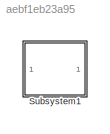
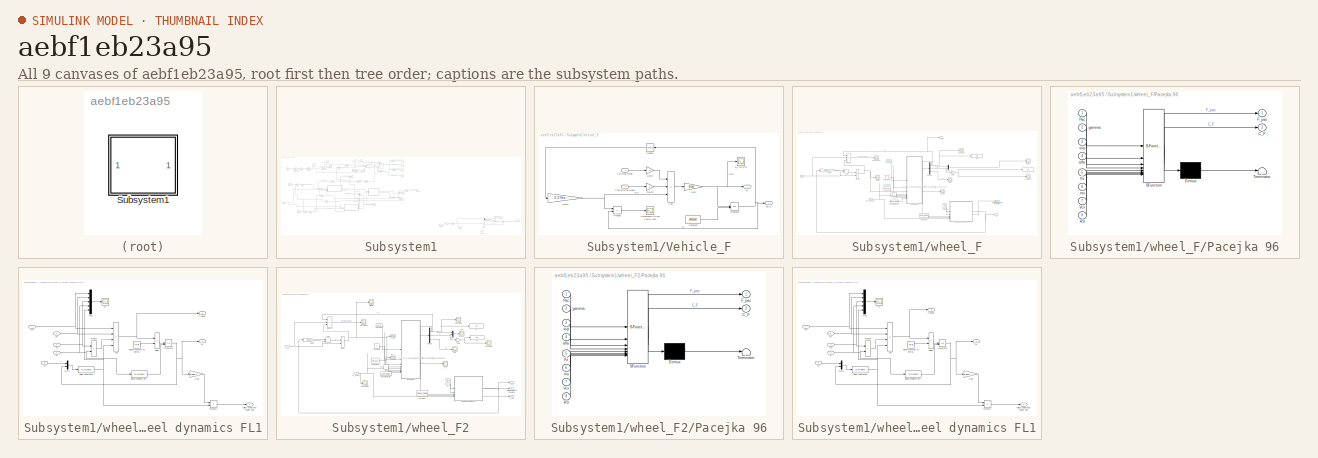
[diagram: thumbnail index - all 9 canvases of the model, root first then tree order]
MODEL slx_aebf1eb23a95
KIND model
CONFIG AbsTol = auto
CONFIG EnableMultiTasking = off
CONFIG FixedStep = 0.001
CONFIG MaxStep = auto
CONFIG MinStep = auto
CONFIG RelTol = 1e-3
CONFIG SampleTimeConstraint = Unconstrained
CONFIG SolverName = ode4
CONFIG StartTime = 0.0
CONFIG StopTime = 200
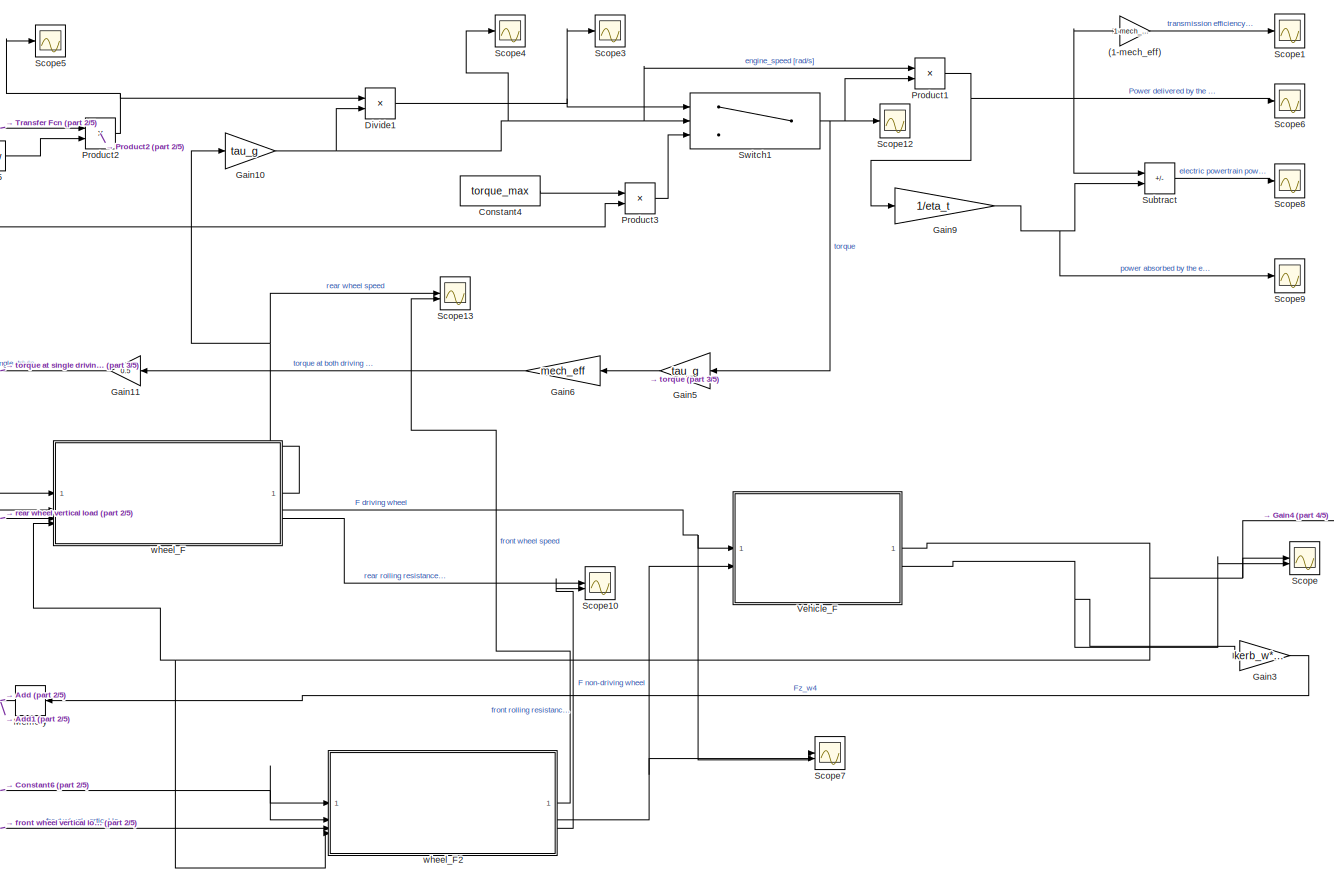
[diagram: Subsystem1 - part 1/5, central region]
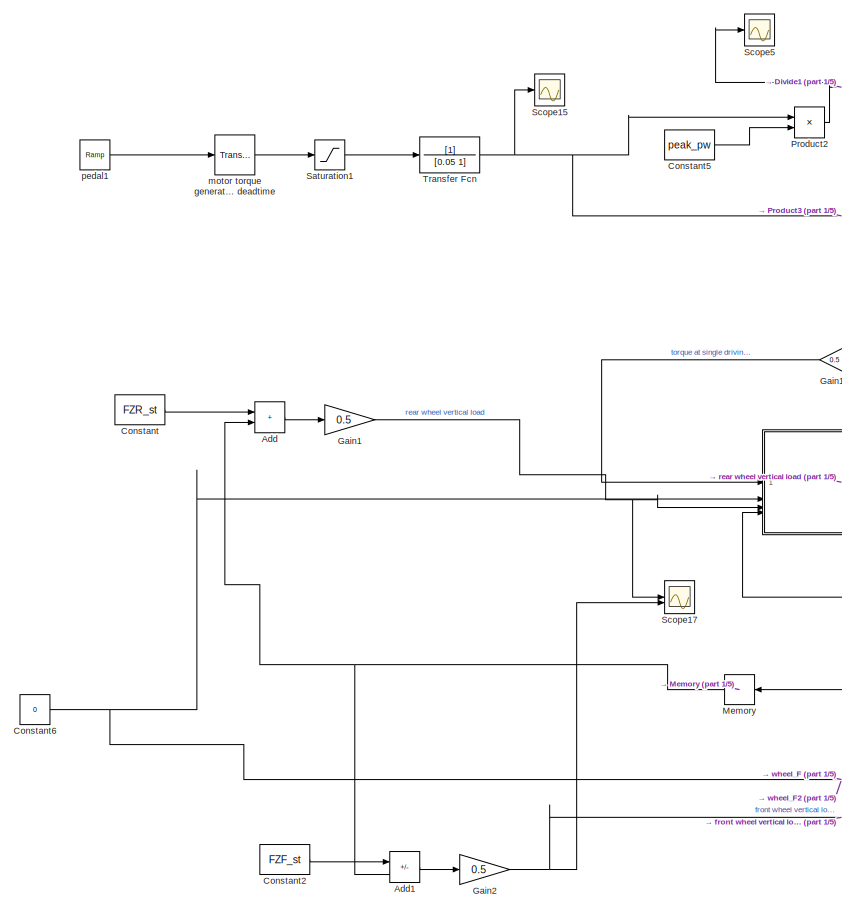
[diagram: Subsystem1 - part 2/5, middle left region]
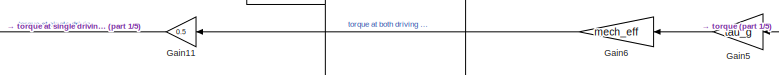
[diagram: Subsystem1 - part 3/5, top left region]
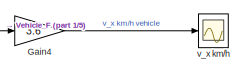
[diagram: Subsystem1 - part 4/5, central region]
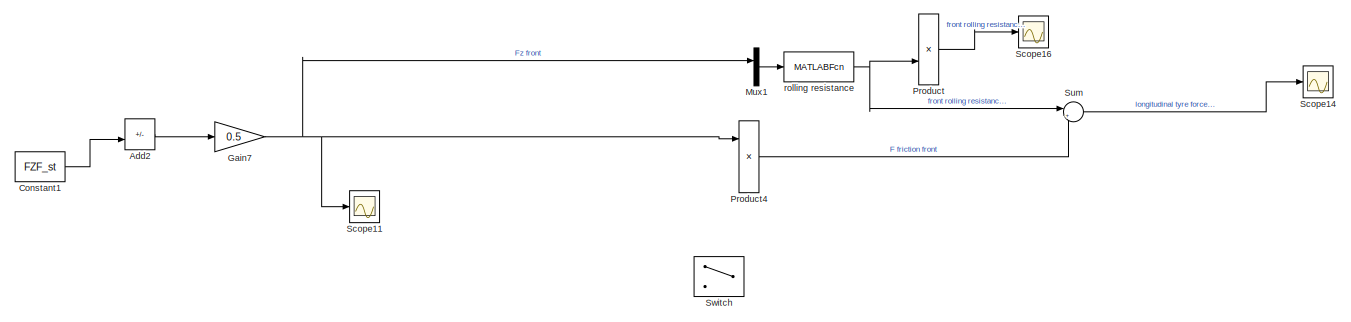
[diagram: Subsystem1 - part 5/5, bottom right region]
BLOCK [SubSystem] Subsystem1
BLOCK [TransportDelay] Subsystem1/ motor torque generation deadtime
  DelayTime = 0.02
BLOCK [Gain] Subsystem1/(1-mech_eff)
  Gain = 1-mech_eff
BLOCK [Sum] Subsystem1/Add
  IconShape = rectangular
BLOCK [Sum] Subsystem1/Add1
  IconShape = rectangular
  Inputs = +-
BLOCK [Sum] Subsystem1/Add2
  Commented = on
  IconShape = rectangular
  Inputs = -+
BLOCK [Constant] Subsystem1/Constant
  Value = FZR_st
BLOCK [Constant] Subsystem1/Constant1
  Commented = on
  Value = FZF_st
BLOCK [Constant] Subsystem1/Constant2
  Value = FZF_st
BLOCK [Constant] Subsystem1/Constant4
  Value = torque_max
  VectorParams1D = off
BLOCK [Constant] Subsystem1/Constant5
  Value = peak_pw
  VectorParams1D = off
BLOCK [Constant] Subsystem1/Constant6
  Value = 0
BLOCK [Product] Subsystem1/Divide1
  Inputs = */
BLOCK [Gain] Subsystem1/Gain1
  Gain = 0.5
BLOCK [Gain] Subsystem1/Gain10
  Gain = tau_g
BLOCK [Gain] Subsystem1/Gain11
  Gain = 0.5
BLOCK [Gain] Subsystem1/Gain2
  Gain = 0.5
BLOCK [Gain] Subsystem1/Gain3
  Gain = kerb_w*cog/wheelbase
BLOCK [Gain] Subsystem1/Gain4
  Gain = 3.6
BLOCK [Gain] Subsystem1/Gain5
  Gain = tau_g
BLOCK [Gain] Subsystem1/Gain6
  Gain = mech_eff
BLOCK [Gain] Subsystem1/Gain7
  Commented = on
  Gain = 0.5
BLOCK [Gain] Subsystem1/Gain9
  Gain = 1/eta_t
BLOCK [Memory] Subsystem1/Memory
BLOCK [Mux] Subsystem1/Mux1
  Commented = on
  DisplayOption = bar
  Inputs = 2
BLOCK [Product] Subsystem1/Product
  Commented = on
BLOCK [Product] Subsystem1/Product1
BLOCK [Product] Subsystem1/Product2
BLOCK [Product] Subsystem1/Product3
BLOCK [Product] Subsystem1/Product4
  Commented = on
  Inputs = 3
BLOCK [Saturate] Subsystem1/Saturation1
  LowerLimit = 0
  UpperLimit = 1
BLOCK [Scope] Subsystem1/Scope
  Floating = off
  NumInputPorts = 2
  ScopeSpecificationString = Simulink.scopes.TimeScopeBlockCfg('CurrentConfiguration', extmgr.ConfigurationSet(extmgr.Configuration('Core','General UI',true),extmgr.Configuration('Core','Source UI',true),extmgr.Configuration('Sources','WiredSimulink',true,'DataLoggingVariableName','ScopeData2'),extmgr.Configuration('Visuals','Time Domain',true,'SerializedDisplays',{struct('MinYLimReal','-13.62778','MaxYLimReal','48.47157','YL...<+1425ch>
BLOCK [Scope] Subsystem1/Scope1
  Floating = off
  NameLocation = top
  NumInputPorts = 1
  ScopeSpecificationString = Simulink.scopes.TimeScopeBlockCfg('CurrentConfiguration', extmgr.ConfigurationSet(extmgr.Configuration('Core','General UI',true),extmgr.Configuration('Core','Source UI',true),extmgr.Configuration('Sources','WiredSimulink',true,'DataLoggingVariableName','ScopeData1'),extmgr.Configuration('Visuals','Time Domain',true,'SerializedDisplays',{struct('MinYLimReal','-362.98885','MaxYLimReal','8003.65139',...<+1461ch>
BLOCK [Scope] Subsystem1/Scope10
  Floating = off
  NumInputPorts = 2
  ScopeSpecificationString = Simulink.scopes.TimeScopeBlockCfg('CurrentConfiguration', extmgr.ConfigurationSet(extmgr.Configuration('Core','General UI',true),extmgr.Configuration('Core','Source UI',true),extmgr.Configuration('Sources','WiredSimulink',true,'DataLoggingVariableName','ScopeData1'),extmgr.Configuration('Visuals','Time Domain',true,'SerializedDisplays',{struct('MinYLimReal','-2482.70812','MaxYLimReal','22278.00893...<+1488ch>
BLOCK [Scope] Subsystem1/Scope11
  Commented = on
  Floating = off
  NumInputPorts = 1
  ScopeSpecificationString = Simulink.scopes.TimeScopeBlockCfg('CurrentConfiguration', extmgr.ConfigurationSet(extmgr.Configuration('Core','General UI',true),extmgr.Configuration('Core','Source UI',true),extmgr.Configuration('Sources','WiredSimulink',true,'DataLoggingVariableName','ScopeData2'),extmgr.Configuration('Visuals','Time Domain',true,'SerializedDisplays',{struct('MinYLimReal','3099.41503','MaxYLimReal','5765.86481',...<+1389ch>
BLOCK [Scope] Subsystem1/Scope12
  Floating = off
  NameLocation = top
  NumInputPorts = 1
  ScopeSpecificationString = Simulink.scopes.TimeScopeBlockCfg('CurrentConfiguration', extmgr.ConfigurationSet(extmgr.Configuration('Core','General UI',true),extmgr.Configuration('Core','Source UI',true),extmgr.Configuration('Sources','WiredSimulink',true,'DataLoggingVariableName','ScopeData1'),extmgr.Configuration('Visuals','Time Domain',true,'SerializedDisplays',{struct('MinYLimReal','-32.04625','MaxYLimReal','288.41625','Y...<+1427ch>
BLOCK [Scope] Subsystem1/Scope13
  Floating = off
  NumInputPorts = 2
  ScopeSpecificationString = Simulink.scopes.TimeScopeBlockCfg('CurrentConfiguration', extmgr.ConfigurationSet(extmgr.Configuration('Core','General UI',true),extmgr.Configuration('Core','Source UI',true),extmgr.Configuration('Sources','WiredSimulink',true,'DataLoggingVariableName','ScopeData2'),extmgr.Configuration('Visuals','Time Domain',true,'SerializedDisplays',{struct('MinYLimReal','-15.69215','MaxYLimReal','136.82999','Y...<+1405ch>
BLOCK [Scope] Subsystem1/Scope14
  Commented = on
  Floating = off
  NumInputPorts = 1
  ScopeSpecificationString = Simulink.scopes.TimeScopeBlockCfg('CurrentConfiguration', extmgr.ConfigurationSet(extmgr.Configuration('Core','General UI',true),extmgr.Configuration('Core','Source UI',true),extmgr.Configuration('Sources','WiredSimulink',true,'DataLoggingVariableName','ScopeData3'),extmgr.Configuration('Visuals','Time Domain',true,'SerializedDisplays',{struct('MinYLimReal','56.69739','MaxYLimReal','141.60777','YL...<+1398ch>
BLOCK [Scope] Subsystem1/Scope15
  Floating = off
  NumInputPorts = 1
  ScopeSpecificationString = Simulink.scopes.TimeScopeBlockCfg('CurrentConfiguration', extmgr.ConfigurationSet(extmgr.Configuration('Core','General UI',true),extmgr.Configuration('Core','Source UI',true),extmgr.Configuration('Sources','WiredSimulink',true),extmgr.Configuration('Visuals','Time Domain',true,'SerializedDisplays',{struct('MinYLimReal','-0.125','MaxYLimReal','1.125','YLabelReal','','MinYLimMag','0.00000','MaxYLimM...<+1320ch>
BLOCK [Scope] Subsystem1/Scope16
  Commented = on
  Floating = off
  NumInputPorts = 1
  ScopeSpecificationString = Simulink.scopes.TimeScopeBlockCfg('CurrentConfiguration', extmgr.ConfigurationSet(extmgr.Configuration('Core','General UI',true),extmgr.Configuration('Core','Source UI',true),extmgr.Configuration('Sources','WiredSimulink',true,'DataLoggingVariableName','ScopeData4'),extmgr.Configuration('Visuals','Time Domain',true,'SerializedDisplays',{struct('MinYLimReal','-451.6741','MaxYLimReal','4095.15071','...<+1410ch>
BLOCK [Scope] Subsystem1/Scope17
  Floating = off
  NumInputPorts = 2
  ScopeSpecificationString = Simulink.scopes.TimeScopeBlockCfg('CurrentConfiguration', extmgr.ConfigurationSet(extmgr.Configuration('Core','General UI',true),extmgr.Configuration('Core','Source UI',true),extmgr.Configuration('Sources','WiredSimulink',true,'DataLoggingVariableName','ScopeData5'),extmgr.Configuration('Visuals','Time Domain',true,'SerializedDisplays',{struct('MinYLimReal','2769.52655','MaxYLimReal','6118.33345',...<+1433ch>
BLOCK [Scope] Subsystem1/Scope3
  Floating = off
  NumInputPorts = 1
  ScopeSpecificationString = Simulink.scopes.TimeScopeBlockCfg('CurrentConfiguration', extmgr.ConfigurationSet(extmgr.Configuration('Core','General UI',true),extmgr.Configuration('Core','Source UI',true),extmgr.Configuration('Sources','WiredSimulink',true,'DataLoggingVariableName','ScopeData3'),extmgr.Configuration('Visuals','Time Domain',true,'SerializedDisplays',{struct('MinYLimReal','-11640.59081','MaxYLimReal','27563.9427...<+1443ch>
BLOCK [Scope] Subsystem1/Scope4
  Floating = off
  NumInputPorts = 1
  ScopeSpecificationString = Simulink.scopes.TimeScopeBlockCfg('CurrentConfiguration', extmgr.ConfigurationSet(extmgr.Configuration('Core','General UI',true),extmgr.Configuration('Core','Source UI',true),extmgr.Configuration('Sources','WiredSimulink',true,'DataLoggingVariableName','ScopeData4'),extmgr.Configuration('Visuals','Time Domain',true,'SerializedDisplays',{struct('MinYLimReal','-213.74036','MaxYLimReal','1888.85018',...<+1445ch>
BLOCK [Scope] Subsystem1/Scope5
  Floating = off
  NumInputPorts = 1
  ScopeSpecificationString = Simulink.scopes.TimeScopeBlockCfg('CurrentConfiguration', extmgr.ConfigurationSet(extmgr.Configuration('Core','General UI',true),extmgr.Configuration('Core','Source UI',true),extmgr.Configuration('Sources','WiredSimulink',true,'DataLoggingVariableName','ScopeData5'),extmgr.Configuration('Visuals','Time Domain',true,'SerializedDisplays',{struct('MinYLimReal','-1500.00000','MaxYLimReal','13500.00000...<+1393ch>
BLOCK [Scope] Subsystem1/Scope6
  Floating = off
  NameLocation = top
  NumInputPorts = 1
  ScopeSpecificationString = Simulink.scopes.TimeScopeBlockCfg('CurrentConfiguration', extmgr.ConfigurationSet(extmgr.Configuration('Core','General UI',true),extmgr.Configuration('Core','Source UI',true),extmgr.Configuration('Sources','WiredSimulink',true,'DataLoggingVariableName','ScopeData3'),extmgr.Configuration('Visuals','Time Domain',true,'SerializedDisplays',{struct('MinYLimReal','-18750.00000','MaxYLimReal','168750.000...<+1472ch>
BLOCK [Scope] Subsystem1/Scope7
  Floating = off
  NumInputPorts = 2
  ScopeSpecificationString = Simulink.scopes.TimeScopeBlockCfg('CurrentConfiguration', extmgr.ConfigurationSet(extmgr.Configuration('Core','General UI',true),extmgr.Configuration('Core','Source UI',true),extmgr.Configuration('Sources','WiredSimulink',true,'DataLoggingVariableName','ScopeData5'),extmgr.Configuration('Visuals','Time Domain',true,'SerializedDisplays',{struct('MinYLimReal','-2058.45295','MaxYLimReal','1851.55702'...<+1437ch>
BLOCK [Scope] Subsystem1/Scope8
  Floating = off
  NameLocation = top
  NumInputPorts = 1
  ScopeSpecificationString = Simulink.scopes.TimeScopeBlockCfg('CurrentConfiguration', extmgr.ConfigurationSet(extmgr.Configuration('Core','General UI',true),extmgr.Configuration('Core','Source UI',true),extmgr.Configuration('Sources','WiredSimulink',true,'DataLoggingVariableName','ScopeData4'),extmgr.Configuration('Visuals','Time Domain',true,'SerializedDisplays',{struct('MinYLimReal','-545.86001','MaxYLimReal','17060.40468'...<+1458ch>
BLOCK [Scope] Subsystem1/Scope9
  Floating = off
  NameLocation = top
  NumInputPorts = 1
  ScopeSpecificationString = Simulink.scopes.TimeScopeBlockCfg('CurrentConfiguration', extmgr.ConfigurationSet(extmgr.Configuration('Core','General UI',true),extmgr.Configuration('Core','Source UI',true),extmgr.Configuration('Sources','WiredSimulink',true,'DataLoggingVariableName','ScopeData1'),extmgr.Configuration('Visuals','Time Domain',true,'SerializedDisplays',{struct('MinYLimReal','-20833.33333','MaxYLimReal','187500.000...<+1768ch>
BLOCK [Sum] Subsystem1/Subtract
  IconShape = rectangular
  Inputs = -+
BLOCK [Sum] Subsystem1/Sum
  Commented = on
  Inputs = |++
BLOCK [Switch] Subsystem1/Switch
  Commented = on
  Criteria = u2 > Threshold
  InputSameDT = off
  SaturateOnIntegerOverflow = off
BLOCK [Switch] Subsystem1/Switch1
  InputSameDT = off
  SaturateOnIntegerOverflow = off
  Threshold = v_base
BLOCK [TransferFcn] Subsystem1/Transfer Fcn
  Denominator = [0.05 1]
BLOCK [SubSystem] Subsystem1/Vehicle_F
BLOCK [Sum] Subsystem1/Vehicle_F/Add
  IconShape = rectangular
  Inputs = ++-
BLOCK [Scope] Subsystem1/Vehicle_F/Aerodynamic Drag Power Loss
  Floating = off
  NumInputPorts = 1
  ScopeSpecificationString = Simulink.scopes.TimeScopeBlockCfg('CurrentConfiguration', extmgr.ConfigurationSet(extmgr.Configuration('Core','General UI',true),extmgr.Configuration('Core','Source UI',true),extmgr.Configuration('Sources','WiredSimulink',true,'DataLoggingVariableName','ScopeData2'),extmgr.Configuration('Visuals','Time Domain',true,'SerializedDisplays',{struct('MinYLimReal','-3607.24711','MaxYLimReal','32465.22669...<+1392ch>
BLOCK [Constant] Subsystem1/Vehicle_F/Constant
  Value = velstart
BLOCK [Inport] Subsystem1/Vehicle_F/F driving wheel
BLOCK [Inport] Subsystem1/Vehicle_F/F non-driving wheel
  Port = 2
BLOCK [Gain] Subsystem1/Vehicle_F/Gain
  Gain = 1/me
BLOCK [Gain] Subsystem1/Vehicle_F/Gain1
  Gain = 0.5*rho*Cx*Af
BLOCK [Gain] Subsystem1/Vehicle_F/Gain2
  Gain = 2
BLOCK [Gain] Subsystem1/Vehicle_F/Gain3
  Gain = 2
BLOCK [Integrator] Subsystem1/Vehicle_F/Integrator
  InitialConditionSource = external
BLOCK [Product] Subsystem1/Vehicle_F/Product
BLOCK [Math] Subsystem1/Vehicle_F/Square
  Operator = square
BLOCK [Outport] Subsystem1/Vehicle_F/a_x
  Port = 2
BLOCK [Scope] Subsystem1/Vehicle_F/a_x [m//s^2]
  Floating = off
  NumInputPorts = 1
  ScopeSpecificationString = Simulink.scopes.TimeScopeBlockCfg('CurrentConfiguration', extmgr.ConfigurationSet(extmgr.Configuration('Core','General UI',true),extmgr.Configuration('Core','Source UI',true),extmgr.Configuration('Sources','WiredSimulink',true,'DataLoggingVariableName','ScopeData9'),extmgr.Configuration('Visuals','Time Domain',true,'SerializedDisplays',{struct('MinYLimReal','-9.27586','MaxYLimReal','9.30429','YLab...<+1364ch>
BLOCK [Outport] Subsystem1/Vehicle_F/vel_x
BLOCK [Reference] Subsystem1/pedal1  REF=simulink/Sources/Ramp
  SourceBlock = simulink/Sources/Ramp
  SourceType = Ramp
BLOCK [MATLABFcn] Subsystem1/rolling resistance
  Commented = on
  MATLABFcn = u(1)*(f0+f2*u(2)^2)
  OutputDimensions = 1
BLOCK [Scope] Subsystem1/v_x km//h
  Floating = off
  NumInputPorts = 1
  ScopeSpecificationString = Simulink.scopes.TimeScopeBlockCfg('CurrentConfiguration', extmgr.ConfigurationSet(extmgr.Configuration('Core','General UI',true),extmgr.Configuration('Core','Source UI',true),extmgr.Configuration('Sources','WiredSimulink',true,'DataLoggingVariableName','ScopeData2'),extmgr.Configuration('Visuals','Time Domain',true,'SerializedDisplays',{struct('MinYLimReal','-5.98646','MaxYLimReal','57.06877','YLa...<+1712ch>
BLOCK [SubSystem] Subsystem1/wheel_F
BLOCK [Sum] Subsystem1/wheel_F/Add
  IconShape = rectangular
  Inputs = +-
BLOCK [Scope] Subsystem1/wheel_F/C_F
  Floating = off
  NumInputPorts = 1
  ScopeSpecificationString = Simulink.scopes.TimeScopeBlockCfg('CurrentConfiguration', extmgr.ConfigurationSet(extmgr.Configuration('Core','General UI',true),extmgr.Configuration('Core','Source UI',true),extmgr.Configuration('Sources','WiredSimulink',true,'DataLoggingVariableName','ScopeData1'),extmgr.Configuration('Visuals','Time Domain',true,'SerializedDisplays',{struct('MinYLimReal','-1.00000','MaxYLimReal','1.00000','YLab...<+1394ch>
BLOCK [Constant] Subsystem1/wheel_F/Constant
  Value = Pacn
BLOCK [Constant] Subsystem1/wheel_F/Constant1
  Value = wheel_radius
BLOCK [Constant] Subsystem1/wheel_F/Constant3
  Value = mu_dry
BLOCK [Constant] Subsystem1/wheel_F/Constant4
  Value = 0
BLOCK [Demux] Subsystem1/wheel_F/Demux
  Outputs = 3
BLOCK [Product] Subsystem1/wheel_F/Divide
  Inputs = */
BLOCK [Outport] Subsystem1/wheel_F/F_tyre
  Port = 2
BLOCK [Display] Subsystem1/wheel_F/Fx
  Decimation = 1
BLOCK [Scope] Subsystem1/wheel_F/Fx scope
  Floating = off
  NumInputPorts = 1
  ScopeSpecificationString = Simulink.scopes.TimeScopeBlockCfg('CurrentConfiguration', extmgr.ConfigurationSet(extmgr.Configuration('Core','General UI',true),extmgr.Configuration('Core','Source UI',true),extmgr.Configuration('Sources','WiredSimulink',true,'DataLoggingVariableName','ScopeData3'),extmgr.Configuration('Visuals','Time Domain',true,'SerializedDisplays',{struct('MinYLimReal','-7023.69008','MaxYLimReal','7084.82153'...<+1412ch>
BLOCK [Scope] Subsystem1/wheel_F/Fx scope2
  Floating = off
  NumInputPorts = 1
  ScopeSpecificationString = Simulink.scopes.TimeScopeBlockCfg('CurrentConfiguration', extmgr.ConfigurationSet(extmgr.Configuration('Core','General UI',true),extmgr.Configuration('Core','Source UI',true),extmgr.Configuration('Sources','WiredSimulink',true,'DataLoggingVariableName','ScopeData5'),extmgr.Configuration('Visuals','Time Domain',true,'SerializedDisplays',{struct('MinYLimReal','-6284.07378','MaxYLimReal','56556.66399...<+1453ch>
BLOCK [Scope] Subsystem1/wheel_F/Fx, Fy
  Floating = off
  NumInputPorts = 1
  ScopeSpecificationString = Simulink.scopes.TimeScopeBlockCfg('CurrentConfiguration', extmgr.ConfigurationSet(extmgr.Configuration('Core','General UI',true),extmgr.Configuration('Core','Source UI',true),extmgr.Configuration('Sources','WiredSimulink',true,'DataLoggingVariableName','ScopeData2'),extmgr.Configuration('Visuals','Time Domain',true),extmgr.Configuration('Tools','Plot Navigation',true),extmgr.Configuration('Tools',...<+40ch>
BLOCK [Display] Subsystem1/wheel_F/Fy
  Decimation = 1
BLOCK [Scope] Subsystem1/wheel_F/Fy scope
  Floating = off
  NumInputPorts = 1
  ScopeSpecificationString = Simulink.scopes.TimeScopeBlockCfg('CurrentConfiguration', extmgr.ConfigurationSet(extmgr.Configuration('Core','General UI',true),extmgr.Configuration('Core','Source UI',true),extmgr.Configuration('Sources','WiredSimulink',true),extmgr.Configuration('Visuals','Time Domain',true,'SerializedDisplays',{struct('MinYLimReal','-1.00000','MaxYLimReal','1.00000','YLabelReal','','MinYLimMag','0.00000','MaxY...<+1324ch>
BLOCK [Inport] Subsystem1/wheel_F/Fz_wheel_i
  Port = 3
BLOCK [Gain] Subsystem1/wheel_F/Gain
  Gain = -1
BLOCK [Gain] Subsystem1/wheel_F/Gain1
  Gain = wheel_radius
BLOCK [Mux] Subsystem1/wheel_F/Mux
  DisplayOption = bar
  Inputs = 2
BLOCK [Scope] Subsystem1/wheel_F/Mz
  Floating = off
  NumInputPorts = 1
  ScopeSpecificationString = Simulink.scopes.TimeScopeBlockCfg('CurrentConfiguration', extmgr.ConfigurationSet(extmgr.Configuration('Core','General UI',true),extmgr.Configuration('Core','Source UI',true),extmgr.Configuration('Sources','WiredSimulink',true,'DataLoggingVariableName','ScopeData1'),extmgr.Configuration('Visuals','Time Domain',true,'SerializedDisplays',{struct('MinYLimReal','-8.65663','MaxYLimReal','-4.62568','YLa...<+1363ch>
BLOCK [SubSystem] Subsystem1/wheel_F/Pacejka 96
  ErrorFcn = Stateflow.Translate.translate
  PermitHierarchicalResolution = ExplicitOnly
  SFBlockType = MATLAB Function
  TreatAsAtomicUnit = on
BLOCK [Demux] Subsystem1/wheel_F/Pacejka 96/ Demux 
  Outputs = 1
BLOCK [S-Function] Subsystem1/wheel_F/Pacejka 96/ SFunction 
  EnableBusSupport = on
  FunctionName = sf_sfun
  PortCounts = [8 3]
  SFcnIsStateOwnerBlock = off
  SFunctionDeploymentMode = off
  Tag = Stateflow S-Function 1
BLOCK [Terminator] Subsystem1/wheel_F/Pacejka 96/ Terminator 
BLOCK [Outport] Subsystem1/wheel_F/Pacejka 96/C_F
  Port = 2
BLOCK [Outport] Subsystem1/wheel_F/Pacejka 96/F_pac
BLOCK [Inport] Subsystem1/wheel_F/Pacejka 96/Fz
  Port = 5
BLOCK [Inport] Subsystem1/wheel_F/Pacejka 96/Pac
BLOCK [Inport] Subsystem1/wheel_F/Pacejka 96/R0
  Port = 8
BLOCK [Inport] Subsystem1/wheel_F/Pacejka 96/Vcx
  Port = 7
BLOCK [Inport] Subsystem1/wheel_F/Pacejka 96/alfa
  Port = 4
BLOCK [Inport] Subsystem1/wheel_F/Pacejka 96/gamma
  Port = 2
BLOCK [Inport] Subsystem1/wheel_F/Pacejka 96/mu
  Port = 6
BLOCK [Inport] Subsystem1/wheel_F/Pacejka 96/slip
  Port = 3
BLOCK [Product] Subsystem1/wheel_F/Product
  Inputs = 3
BLOCK [Scope] Subsystem1/wheel_F/Slip ratio
  Floating = off
  NumInputPorts = 1
  ScopeSpecificationString = Simulink.scopes.TimeScopeBlockCfg('CurrentConfiguration', extmgr.ConfigurationSet(extmgr.Configuration('Core','General UI',true),extmgr.Configuration('Core','Source UI',true),extmgr.Configuration('Sources','WiredSimulink',true,'DataLoggingVariableName','ScopeData2'),extmgr.Configuration('Visuals','Time Domain',true,'SerializedDisplays',{struct('MinYLimReal','-1.9664','MaxYLimReal','1.98415','YLabe...<+1382ch>
BLOCK [Inport] Subsystem1/wheel_F/Tb
  Port = 2
BLOCK [Inport] Subsystem1/wheel_F/Tm
BLOCK [Constant] Subsystem1/wheel_F/Vcx
BLOCK [Outport] Subsystem1/wheel_F/rolling resistance power loss
  Port = 3
BLOCK [Inport] Subsystem1/wheel_F/v_x
  Port = 4
BLOCK [Outport] Subsystem1/wheel_F/w
BLOCK [SubSystem] Subsystem1/wheel_F/wheel dynamics FL1
BLOCK [Sum] Subsystem1/wheel_F/wheel dynamics FL1/Add
  IconShape = rectangular
  Inputs = +---
BLOCK [Product] Subsystem1/wheel_F/wheel dynamics FL1/Divide
  Inputs = */
BLOCK [Outport] Subsystem1/wheel_F/wheel dynamics FL1/F wheel
  Port = 3
BLOCK [Scope] Subsystem1/wheel_F/wheel dynamics FL1/FL
  Floating = off
  NumInputPorts = 1
  ScopeSpecificationString = Simulink.scopes.TimeScopeBlockCfg('CurrentConfiguration', extmgr.ConfigurationSet(extmgr.Configuration('Core','General UI',true),extmgr.Configuration('Core','Source UI',true),extmgr.Configuration('Sources','WiredSimulink',true),extmgr.Configuration('Visuals','Time Domain',true,'SerializedDisplays',{struct('MinYLimReal','-1185.05178','MaxYLimReal','1441.95589','YLabelReal','','MinYLimMag','  0.0000...<+1514ch>
BLOCK [Inport] Subsystem1/wheel_F/wheel dynamics FL1/Fx
  Port = 3
BLOCK [Inport] Subsystem1/wheel_F/wheel dynamics FL1/Fz
  Port = 5
BLOCK [Gain] Subsystem1/wheel_F/wheel dynamics FL1/Gain
  Gain = wheel_radius
BLOCK [Integrator] Subsystem1/wheel_F/wheel dynamics FL1/Integrator
  InitialCondition = x0
  InitialConditionSource = external
BLOCK [Mux] Subsystem1/wheel_F/wheel dynamics FL1/Mux
  DisplayOption = bar
  Inputs = 5
BLOCK [Mux] Subsystem1/wheel_F/wheel dynamics FL1/Mux1
  DisplayOption = bar
  Inputs = 2
BLOCK [Product] Subsystem1/wheel_F/wheel dynamics FL1/Product
BLOCK [Product] Subsystem1/wheel_F/wheel dynamics FL1/Product1
BLOCK [Inport] Subsystem1/wheel_F/wheel dynamics FL1/R
  Port = 4
BLOCK [Inport] Subsystem1/wheel_F/wheel dynamics FL1/Tb
  Port = 2
BLOCK [Inport] Subsystem1/wheel_F/wheel dynamics FL1/Tm
BLOCK [MATLABFcn] Subsystem1/wheel_F/wheel dynamics FL1/initial condition wr0
  MATLABFcn = velstart/u
BLOCK [MATLABFcn] Subsystem1/wheel_F/wheel dynamics FL1/rolling resistance
  MATLABFcn = u(1)*(f0+f2*u(2)^2)
BLOCK [Outport] Subsystem1/wheel_F/wheel dynamics FL1/rolling resistance power loss
  Port = 2
BLOCK [Outport] Subsystem1/wheel_F/wheel dynamics FL1/w
BLOCK [Constant] Subsystem1/wheel_F/wheel dynamics FL1/wheel moment of inertia
  Value = inertia
BLOCK [Constant] Subsystem1/wheel_F/wheel radius [m]
  Value = wheel_radius
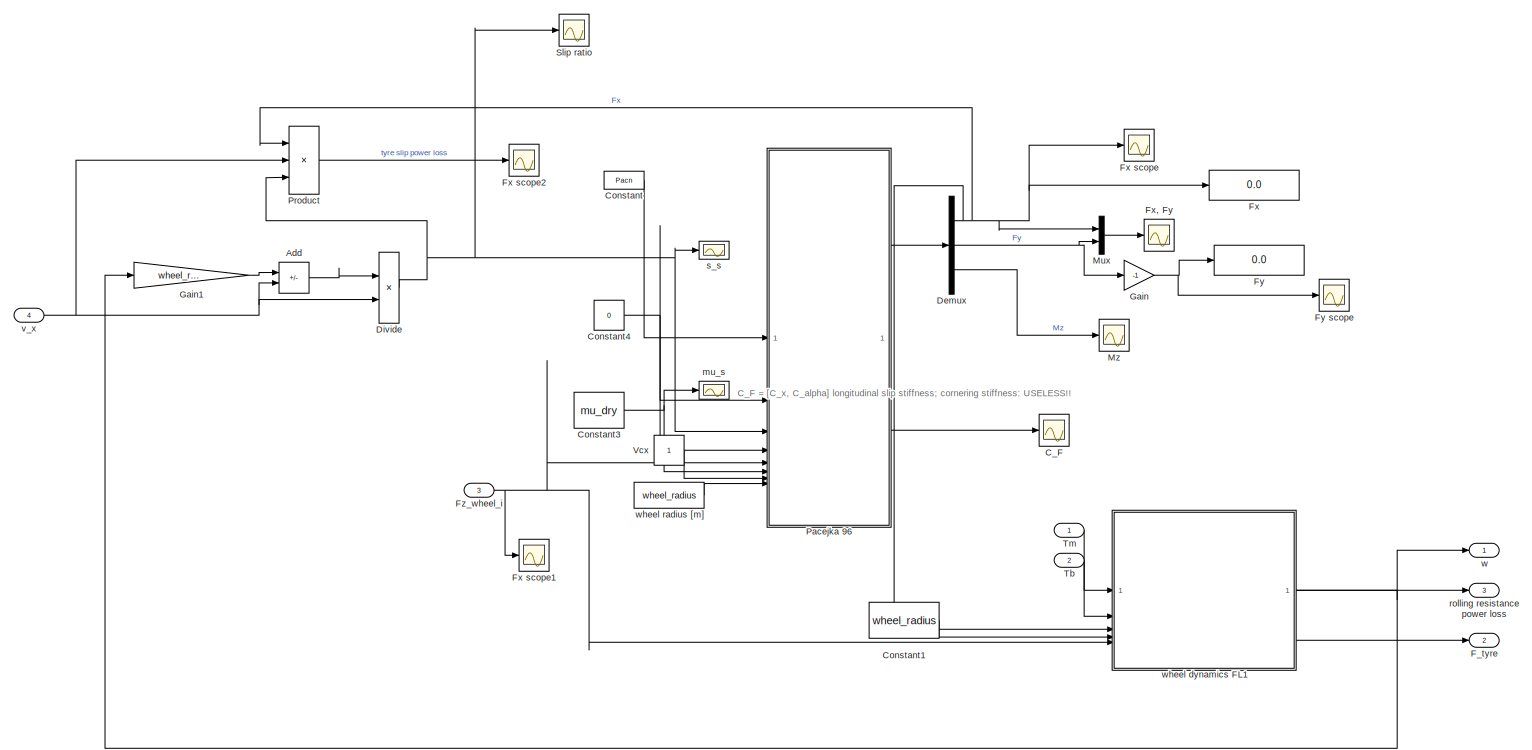
[diagram: Subsystem1/wheel_F2 - part 1/1, most of the canvas]
BLOCK [SubSystem] Subsystem1/wheel_F2
BLOCK [Sum] Subsystem1/wheel_F2/Add
  IconShape = rectangular
  Inputs = +-
BLOCK [Scope] Subsystem1/wheel_F2/C_F
  Floating = off
  NumInputPorts = 1
  ScopeSpecificationString = Simulink.scopes.TimeScopeBlockCfg('CurrentConfiguration', extmgr.ConfigurationSet(extmgr.Configuration('Core','General UI',true),extmgr.Configuration('Core','Source UI',true),extmgr.Configuration('Sources','WiredSimulink',true,'DataLoggingVariableName','ScopeData1'),extmgr.Configuration('Visuals','Time Domain',true,'SerializedDisplays',{struct('MinYLimReal','-1.00000','MaxYLimReal','1.00000','YLab...<+1394ch>
BLOCK [Constant] Subsystem1/wheel_F2/Constant
  Value = Pacn
BLOCK [Constant] Subsystem1/wheel_F2/Constant1
  Value = wheel_radius
BLOCK [Constant] Subsystem1/wheel_F2/Constant3
  Value = mu_dry
BLOCK [Constant] Subsystem1/wheel_F2/Constant4
  Value = 0
BLOCK [Demux] Subsystem1/wheel_F2/Demux
  Outputs = 3
BLOCK [Product] Subsystem1/wheel_F2/Divide
  Inputs = */
BLOCK [Outport] Subsystem1/wheel_F2/F_tyre
  Port = 2
BLOCK [Display] Subsystem1/wheel_F2/Fx
  Decimation = 1
BLOCK [Scope] Subsystem1/wheel_F2/Fx scope
  Floating = off
  NumInputPorts = 1
  ScopeSpecificationString = Simulink.scopes.TimeScopeBlockCfg('CurrentConfiguration', extmgr.ConfigurationSet(extmgr.Configuration('Core','General UI',true),extmgr.Configuration('Core','Source UI',true),extmgr.Configuration('Sources','WiredSimulink',true,'DataLoggingVariableName','ScopeData3'),extmgr.Configuration('Visuals','Time Domain',true,'SerializedDisplays',{struct('MinYLimReal','-6985.9016','MaxYLimReal','6983.17028',...<+1408ch>
BLOCK [Scope] Subsystem1/wheel_F2/Fx scope1
  Floating = off
  NumInputPorts = 1
  ScopeSpecificationString = Simulink.scopes.TimeScopeBlockCfg('CurrentConfiguration', extmgr.ConfigurationSet(extmgr.Configuration('Core','General UI',true),extmgr.Configuration('Core','Source UI',true),extmgr.Configuration('Sources','WiredSimulink',true,'DataLoggingVariableName','ScopeData3'),extmgr.Configuration('Visuals','Time Domain',true,'SerializedDisplays',{struct('MinYLimReal','4303.10631','MaxYLimReal','5711.34318',...<+1418ch>
BLOCK [Scope] Subsystem1/wheel_F2/Fx scope2
  Floating = off
  NumInputPorts = 1
  ScopeSpecificationString = Simulink.scopes.TimeScopeBlockCfg('CurrentConfiguration', extmgr.ConfigurationSet(extmgr.Configuration('Core','General UI',true),extmgr.Configuration('Core','Source UI',true),extmgr.Configuration('Sources','WiredSimulink',true,'DataLoggingVariableName','ScopeData5'),extmgr.Configuration('Visuals','Time Domain',true,'SerializedDisplays',{struct('MinYLimReal','-6284.07378','MaxYLimReal','56556.66399...<+1453ch>
BLOCK [Scope] Subsystem1/wheel_F2/Fx, Fy
  Floating = off
  NumInputPorts = 1
  ScopeSpecificationString = Simulink.scopes.TimeScopeBlockCfg('CurrentConfiguration', extmgr.ConfigurationSet(extmgr.Configuration('Core','General UI',true),extmgr.Configuration('Core','Source UI',true),extmgr.Configuration('Sources','WiredSimulink',true,'DataLoggingVariableName','ScopeData2'),extmgr.Configuration('Visuals','Time Domain',true),extmgr.Configuration('Tools','Plot Navigation',true),extmgr.Configuration('Tools',...<+40ch>
BLOCK [Display] Subsystem1/wheel_F2/Fy
  Decimation = 1
BLOCK [Scope] Subsystem1/wheel_F2/Fy scope
  Floating = off
  NumInputPorts = 1
  ScopeSpecificationString = Simulink.scopes.TimeScopeBlockCfg('CurrentConfiguration', extmgr.ConfigurationSet(extmgr.Configuration('Core','General UI',true),extmgr.Configuration('Core','Source UI',true),extmgr.Configuration('Sources','WiredSimulink',true),extmgr.Configuration('Visuals','Time Domain',true,'SerializedDisplays',{struct('MinYLimReal','-1.00000','MaxYLimReal','1.00000','YLabelReal','','MinYLimMag','0.00000','MaxY...<+1324ch>
BLOCK [Inport] Subsystem1/wheel_F2/Fz_wheel_i
  Port = 3
BLOCK [Gain] Subsystem1/wheel_F2/Gain
  Gain = -1
BLOCK [Gain] Subsystem1/wheel_F2/Gain1
  Gain = wheel_radius
BLOCK [Mux] Subsystem1/wheel_F2/Mux
  DisplayOption = bar
  Inputs = 2
BLOCK [Scope] Subsystem1/wheel_F2/Mz
  Floating = off
  NumInputPorts = 1
  ScopeSpecificationString = Simulink.scopes.TimeScopeBlockCfg('CurrentConfiguration', extmgr.ConfigurationSet(extmgr.Configuration('Core','General UI',true),extmgr.Configuration('Core','Source UI',true),extmgr.Configuration('Sources','WiredSimulink',true,'DataLoggingVariableName','ScopeData1'),extmgr.Configuration('Visuals','Time Domain',true),extmgr.Configuration('Tools','Plot Navigation',true),extmgr.Configuration('Tools',...<+40ch>
BLOCK [SubSystem] Subsystem1/wheel_F2/Pacejka 96
  ErrorFcn = Stateflow.Translate.translate
  PermitHierarchicalResolution = ExplicitOnly
  SFBlockType = MATLAB Function
  TreatAsAtomicUnit = on
BLOCK [Demux] Subsystem1/wheel_F2/Pacejka 96/ Demux 
  Outputs = 1
BLOCK [S-Function] Subsystem1/wheel_F2/Pacejka 96/ SFunction 
  EnableBusSupport = on
  FunctionName = sf_sfun
  PortCounts = [8 3]
  SFcnIsStateOwnerBlock = off
  SFunctionDeploymentMode = off
  Tag = Stateflow S-Function 2
BLOCK [Terminator] Subsystem1/wheel_F2/Pacejka 96/ Terminator 
BLOCK [Outport] Subsystem1/wheel_F2/Pacejka 96/C_F
  Port = 2
BLOCK [Outport] Subsystem1/wheel_F2/Pacejka 96/F_pac
BLOCK [Inport] Subsystem1/wheel_F2/Pacejka 96/Fz
  Port = 5
BLOCK [Inport] Subsystem1/wheel_F2/Pacejka 96/Pac
BLOCK [Inport] Subsystem1/wheel_F2/Pacejka 96/R0
  Port = 8
BLOCK [Inport] Subsystem1/wheel_F2/Pacejka 96/Vcx
  Port = 7
BLOCK [Inport] Subsystem1/wheel_F2/Pacejka 96/alfa
  Port = 4
BLOCK [Inport] Subsystem1/wheel_F2/Pacejka 96/gamma
  Port = 2
BLOCK [Inport] Subsystem1/wheel_F2/Pacejka 96/mu
  Port = 6
BLOCK [Inport] Subsystem1/wheel_F2/Pacejka 96/slip
  Port = 3
BLOCK [Product] Subsystem1/wheel_F2/Product
  Inputs = 3
BLOCK [Scope] Subsystem1/wheel_F2/Slip ratio
  Floating = off
  NumInputPorts = 1
  ScopeSpecificationString = Simulink.scopes.TimeScopeBlockCfg('CurrentConfiguration', extmgr.ConfigurationSet(extmgr.Configuration('Core','General UI',true),extmgr.Configuration('Core','Source UI',true),extmgr.Configuration('Sources','WiredSimulink',true,'DataLoggingVariableName','ScopeData2'),extmgr.Configuration('Visuals','Time Domain',true,'SerializedDisplays',{struct('MinYLimReal','-4294805764.61418','MaxYLimReal','21498...<+1454ch>
BLOCK [Inport] Subsystem1/wheel_F2/Tb
  Port = 2
BLOCK [Inport] Subsystem1/wheel_F2/Tm
BLOCK [Constant] Subsystem1/wheel_F2/Vcx
BLOCK [Scope] Subsystem1/wheel_F2/mu_s
  Floating = off
  NumInputPorts = 1
  ScopeSpecificationString = Simulink.scopes.TimeScopeBlockCfg('CurrentConfiguration', extmgr.ConfigurationSet(extmgr.Configuration('Core','General UI',true),extmgr.Configuration('Core','Source UI',true),extmgr.Configuration('Sources','WiredSimulink',true,'DataLoggingVariableName','ScopeData8'),extmgr.Configuration('Visuals','Time Domain',true),extmgr.Configuration('Tools','Plot Navigation',true),extmgr.Configuration('Tools',...<+40ch>
BLOCK [Outport] Subsystem1/wheel_F2/rolling resistance power loss
  Port = 3
BLOCK [Scope] Subsystem1/wheel_F2/s_s
  Floating = off
  NumInputPorts = 1
  ScopeSpecificationString = Simulink.scopes.TimeScopeBlockCfg('CurrentConfiguration', extmgr.ConfigurationSet(extmgr.Configuration('Core','General UI',true),extmgr.Configuration('Core','Source UI',true),extmgr.Configuration('Sources','WiredSimulink',true,'DataLoggingVariableName','ScopeData5'),extmgr.Configuration('Visuals','Time Domain',true,'SerializedDisplays',{struct('MinYLimReal','-3.06758','MaxYLimReal','1.51231','YLab...<+1365ch>
BLOCK [Inport] Subsystem1/wheel_F2/v_x
  Port = 4
BLOCK [Outport] Subsystem1/wheel_F2/w
BLOCK [SubSystem] Subsystem1/wheel_F2/wheel dynamics FL1
BLOCK [Sum] Subsystem1/wheel_F2/wheel dynamics FL1/Add
  IconShape = rectangular
  Inputs = +---
BLOCK [Product] Subsystem1/wheel_F2/wheel dynamics FL1/Divide
  Inputs = */
BLOCK [Outport] Subsystem1/wheel_F2/wheel dynamics FL1/F wheel
  Port = 3
BLOCK [Scope] Subsystem1/wheel_F2/wheel dynamics FL1/FL
  Floating = off
  NumInputPorts = 1
  ScopeSpecificationString = Simulink.scopes.TimeScopeBlockCfg('CurrentConfiguration', extmgr.ConfigurationSet(extmgr.Configuration('Core','General UI',true),extmgr.Configuration('Core','Source UI',true),extmgr.Configuration('Sources','WiredSimulink',true),extmgr.Configuration('Visuals','Time Domain',true,'SerializedDisplays',{struct('MinYLimReal','-1185.05178','MaxYLimReal','1441.95589','YLabelReal','','MinYLimMag','  0.0000...<+1512ch>
BLOCK [Inport] Subsystem1/wheel_F2/wheel dynamics FL1/Fx
  Port = 3
BLOCK [Inport] Subsystem1/wheel_F2/wheel dynamics FL1/Fz
  Port = 5
BLOCK [Gain] Subsystem1/wheel_F2/wheel dynamics FL1/Gain
  Gain = wheel_radius
BLOCK [Integrator] Subsystem1/wheel_F2/wheel dynamics FL1/Integrator
  InitialCondition = x0
  InitialConditionSource = external
BLOCK [Mux] Subsystem1/wheel_F2/wheel dynamics FL1/Mux
  DisplayOption = bar
  Inputs = 5
BLOCK [Mux] Subsystem1/wheel_F2/wheel dynamics FL1/Mux1
  DisplayOption = bar
  Inputs = 2
BLOCK [Product] Subsystem1/wheel_F2/wheel dynamics FL1/Product
BLOCK [Product] Subsystem1/wheel_F2/wheel dynamics FL1/Product1
BLOCK [Inport] Subsystem1/wheel_F2/wheel dynamics FL1/R
  Port = 4
BLOCK [Inport] Subsystem1/wheel_F2/wheel dynamics FL1/Tb
  Port = 2
BLOCK [Inport] Subsystem1/wheel_F2/wheel dynamics FL1/Tm
BLOCK [MATLABFcn] Subsystem1/wheel_F2/wheel dynamics FL1/initial condition wr0
  MATLABFcn = velstart/u
BLOCK [MATLABFcn] Subsystem1/wheel_F2/wheel dynamics FL1/rolling resistance
  MATLABFcn = u(1)*(f0+f2*u(2)^2)
BLOCK [Outport] Subsystem1/wheel_F2/wheel dynamics FL1/rolling resistance power loss
  Port = 2
BLOCK [Outport] Subsystem1/wheel_F2/wheel dynamics FL1/w
BLOCK [Constant] Subsystem1/wheel_F2/wheel dynamics FL1/wheel moment of inertia
  Value = inertia
BLOCK [Constant] Subsystem1/wheel_F2/wheel radius [m]
  Value = wheel_radius
ANNOTATION Subsystem1/wheel_F: C_F = [C_x, C_alpha] longitudinal slip stiffness; cornering stiffness: USELESS!!
ANNOTATION Subsystem1/wheel_F2: C_F = [C_x, C_alpha] longitudinal slip stiffness; cornering stiffness: USELESS!!
LINE Subsystem1/ motor torque generation deadtime:1 -> Subsystem1/Saturation1:1
LINE Subsystem1/(1-mech_eff):1 -> Subsystem1/Scope1:1
LINE Subsystem1/Add1:1 -> Subsystem1/Gain2:1
LINE Subsystem1/Add2:1 -> Subsystem1/Gain7:1
LINE Subsystem1/Add:1 -> Subsystem1/Gain1:1
LINE Subsystem1/Constant1:1 -> Subsystem1/Add2:2
LINE Subsystem1/Constant2:1 -> Subsystem1/Add1:1
LINE Subsystem1/Constant4:1 -> Subsystem1/Product3:1
LINE Subsystem1/Constant5:1 -> Subsystem1/Product2:2
NET Subsystem1/Constant6:1 -> Subsystem1/wheel_F2:1, Subsystem1/wheel_F2:2, Subsystem1/wheel_F:2
LINE Subsystem1/Constant:1 -> Subsystem1/Add:1
NET Subsystem1/Divide1:1 -> Subsystem1/Scope3:1, Subsystem1/Switch1:1
NET Subsystem1/Gain10:1 -> Subsystem1/Divide1:2, Subsystem1/Product1:1, Subsystem1/Scope4:1, Subsystem1/Switch1:2
LINE Subsystem1/Gain11:1 -> Subsystem1/wheel_F:1
NET Subsystem1/Gain1:1 -> Subsystem1/Scope17:1, Subsystem1/wheel_F:3
NET Subsystem1/Gain2:1 -> Subsystem1/Scope17:2, Subsystem1/wheel_F2:3
LINE Subsystem1/Gain3:1 -> Subsystem1/Memory:1
LINE Subsystem1/Gain4:1 -> Subsystem1/v_x km//h:1
LINE Subsystem1/Gain5:1 -> Subsystem1/Gain6:1
LINE Subsystem1/Gain6:1 -> Subsystem1/Gain11:1
NET Subsystem1/Gain7:1 -> Subsystem1/Mux1:1, Subsystem1/Product4:1, Subsystem1/Scope11:1
NET Subsystem1/Gain9:1 -> Subsystem1/Scope9:1, Subsystem1/Subtract:2
NET Subsystem1/Memory:1 -> Subsystem1/Add1:2, Subsystem1/Add:2
LINE Subsystem1/Mux1:1 -> Subsystem1/rolling resistance:1
NET Subsystem1/Product1:1 -> Subsystem1/(1-mech_eff):1, Subsystem1/Gain9:1, Subsystem1/Scope6:1, Subsystem1/Subtract:1
NET Subsystem1/Product2:1 -> Subsystem1/Divide1:1, Subsystem1/Scope5:1
LINE Subsystem1/Product3:1 -> Subsystem1/Switch1:3
LINE Subsystem1/Product4:1 -> Subsystem1/Sum:2
LINE Subsystem1/Product:1 -> Subsystem1/Scope16:1
LINE Subsystem1/Saturation1:1 -> Subsystem1/Transfer Fcn:1
LINE Subsystem1/Subtract:1 -> Subsystem1/Scope8:1
LINE Subsystem1/Sum:1 -> Subsystem1/Scope14:1
NET Subsystem1/Switch1:1 -> Subsystem1/Gain5:1, Subsystem1/Product1:2, Subsystem1/Scope12:1
NET Subsystem1/Transfer Fcn:1 -> Subsystem1/Product2:1, Subsystem1/Product3:2, Subsystem1/Scope15:1
LINE Subsystem1/Vehicle_F/Add:1 -> Subsystem1/Vehicle_F/Gain:1
LINE Subsystem1/Vehicle_F/Constant:1 -> Subsystem1/Vehicle_F/Integrator:2
LINE Subsystem1/Vehicle_F/F driving wheel:1 -> Subsystem1/Vehicle_F/Gain2:1
LINE Subsystem1/Vehicle_F/F non-driving wheel:1 -> Subsystem1/Vehicle_F/Gain3:1
NET Subsystem1/Vehicle_F/Gain1:1 -> Subsystem1/Vehicle_F/Add:3, Subsystem1/Vehicle_F/Product:1
LINE Subsystem1/Vehicle_F/Gain2:1 -> Subsystem1/Vehicle_F/Add:1
LINE Subsystem1/Vehicle_F/Gain3:1 -> Subsystem1/Vehicle_F/Add:2
NET Subsystem1/Vehicle_F/Gain:1 -> Subsystem1/Vehicle_F/Integrator:1, Subsystem1/Vehicle_F/a_x [m//s^2]:1, Subsystem1/Vehicle_F/a_x:1
NET Subsystem1/Vehicle_F/Integrator:1 -> Subsystem1/Vehicle_F/Product:2, Subsystem1/Vehicle_F/Square:1, Subsystem1/Vehicle_F/vel_x:1
LINE Subsystem1/Vehicle_F/Product:1 -> Subsystem1/Vehicle_F/Aerodynamic Drag Power Loss:1
LINE Subsystem1/Vehicle_F/Square:1 -> Subsystem1/Vehicle_F/Gain1:1
NET Subsystem1/Vehicle_F:1 -> Subsystem1/Gain4:1, Subsystem1/Scope:1, Subsystem1/wheel_F2:4, Subsystem1/wheel_F:4
NET Subsystem1/Vehicle_F:2 -> Subsystem1/Gain3:1, Subsystem1/Scope:2
LINE Subsystem1/pedal1:1 -> Subsystem1/ motor torque generation deadtime:1
NET Subsystem1/rolling resistance:1 -> Subsystem1/Product:2, Subsystem1/Sum:1
LINE Subsystem1/wheel_F/Add:1 -> Subsystem1/wheel_F/Divide:1
LINE Subsystem1/wheel_F/Constant1:1 -> Subsystem1/wheel_F/wheel dynamics FL1:4
LINE Subsystem1/wheel_F/Constant3:1 -> Subsystem1/wheel_F/Pacejka 96:6
NET Subsystem1/wheel_F/Constant4:1 -> Subsystem1/wheel_F/Pacejka 96:2, Subsystem1/wheel_F/Pacejka 96:4
LINE Subsystem1/wheel_F/Constant:1 -> Subsystem1/wheel_F/Pacejka 96:1
NET Subsystem1/wheel_F/Demux:1 -> Subsystem1/wheel_F/F_tyre:1, Subsystem1/wheel_F/Fx scope:1, Subsystem1/wheel_F/Fx:1, Subsystem1/wheel_F/Mux:1, Subsystem1/wheel_F/Product:1, Subsystem1/wheel_F/wheel dynamics FL1:3
NET Subsystem1/wheel_F/Demux:2 -> Subsystem1/wheel_F/Gain:1, Subsystem1/wheel_F/Mux:2
LINE Subsystem1/wheel_F/Demux:3 -> Subsystem1/wheel_F/Mz:1
NET Subsystem1/wheel_F/Divide:1 -> Subsystem1/wheel_F/Pacejka 96:3, Subsystem1/wheel_F/Product:3, Subsystem1/wheel_F/Slip ratio:1
NET Subsystem1/wheel_F/Fz_wheel_i:1 -> Subsystem1/wheel_F/Pacejka 96:5, Subsystem1/wheel_F/wheel dynamics FL1:5
LINE Subsystem1/wheel_F/Gain1:1 -> Subsystem1/wheel_F/Add:1
NET Subsystem1/wheel_F/Gain:1 -> Subsystem1/wheel_F/Fy scope:1, Subsystem1/wheel_F/Fy:1
LINE Subsystem1/wheel_F/Mux:1 -> Subsystem1/wheel_F/Fx, Fy:1
LINE Subsystem1/wheel_F/Pacejka 96:1 -> Subsystem1/wheel_F/Demux:1
LINE Subsystem1/wheel_F/Pacejka 96:2 -> Subsystem1/wheel_F/C_F:1
LINE Subsystem1/wheel_F/Product:1 -> Subsystem1/wheel_F/Fx scope2:1
LINE Subsystem1/wheel_F/Tb:1 -> Subsystem1/wheel_F/wheel dynamics FL1:2
LINE Subsystem1/wheel_F/Tm:1 -> Subsystem1/wheel_F/wheel dynamics FL1:1
LINE Subsystem1/wheel_F/Vcx:1 -> Subsystem1/wheel_F/Pacejka 96:7
NET Subsystem1/wheel_F/v_x:1 -> Subsystem1/wheel_F/Add:2, Subsystem1/wheel_F/Divide:2, Subsystem1/wheel_F/Product:2
NET Subsystem1/wheel_F/wheel dynamics FL1/Add:1 -> Subsystem1/wheel_F/wheel dynamics FL1/Divide:1, Subsystem1/wheel_F/wheel dynamics FL1/F wheel:1
LINE Subsystem1/wheel_F/wheel dynamics FL1/Divide:1 -> Subsystem1/wheel_F/wheel dynamics FL1/Integrator:1
NET Subsystem1/wheel_F/wheel dynamics FL1/Fx:1 -> Subsystem1/wheel_F/wheel dynamics FL1/Mux:3, Subsystem1/wheel_F/wheel dynamics FL1/Product:1
LINE Subsystem1/wheel_F/wheel dynamics FL1/Fz:1 -> Subsystem1/wheel_F/wheel dynamics FL1/Mux1:1
LINE Subsystem1/wheel_F/wheel dynamics FL1/Gain:1 -> Subsystem1/wheel_F/wheel dynamics FL1/Product1:1
NET Subsystem1/wheel_F/wheel dynamics FL1/Integrator:1 -> Subsystem1/wheel_F/wheel dynamics FL1/Gain:1, Subsystem1/wheel_F/wheel dynamics FL1/Mux1:2, Subsystem1/wheel_F/wheel dynamics FL1/w:1
LINE Subsystem1/wheel_F/wheel dynamics FL1/Mux1:1 -> Subsystem1/wheel_F/wheel dynamics FL1/rolling resistance:1
LINE Subsystem1/wheel_F/wheel dynamics FL1/Mux:1 -> Subsystem1/wheel_F/wheel dynamics FL1/FL:1
LINE Subsystem1/wheel_F/wheel dynamics FL1/Product1:1 -> Subsystem1/wheel_F/wheel dynamics FL1/rolling resistance power loss:1
LINE Subsystem1/wheel_F/wheel dynamics FL1/Product:1 -> Subsystem1/wheel_F/wheel dynamics FL1/Add:3
NET Subsystem1/wheel_F/wheel dynamics FL1/R:1 -> Subsystem1/wheel_F/wheel dynamics FL1/Mux:4, Subsystem1/wheel_F/wheel dynamics FL1/Product:2, Subsystem1/wheel_F/wheel dynamics FL1/initial condition wr0:1
NET Subsystem1/wheel_F/wheel dynamics FL1/Tb:1 -> Subsystem1/wheel_F/wheel dynamics FL1/Add:2, Subsystem1/wheel_F/wheel dynamics FL1/Mux:2
NET Subsystem1/wheel_F/wheel dynamics FL1/Tm:1 -> Subsystem1/wheel_F/wheel dynamics FL1/Add:1, Subsystem1/wheel_F/wheel dynamics FL1/Mux:1
LINE Subsystem1/wheel_F/wheel dynamics FL1/initial condition wr0:1 -> Subsystem1/wheel_F/wheel dynamics FL1/Integrator:2
NET Subsystem1/wheel_F/wheel dynamics FL1/rolling resistance:1 -> Subsystem1/wheel_F/wheel dynamics FL1/Add:4, Subsystem1/wheel_F/wheel dynamics FL1/Mux:5, Subsystem1/wheel_F/wheel dynamics FL1/Product1:2
LINE Subsystem1/wheel_F/wheel dynamics FL1/wheel moment of inertia:1 -> Subsystem1/wheel_F/wheel dynamics FL1/Divide:2
NET Subsystem1/wheel_F/wheel dynamics FL1:1 -> Subsystem1/wheel_F/Gain1:1, Subsystem1/wheel_F/w:1
LINE Subsystem1/wheel_F/wheel dynamics FL1:2 -> Subsystem1/wheel_F/rolling resistance power loss:1
LINE Subsystem1/wheel_F/wheel radius [m]:1 -> Subsystem1/wheel_F/Pacejka 96:8
LINE Subsystem1/wheel_F2/Add:1 -> Subsystem1/wheel_F2/Divide:1
LINE Subsystem1/wheel_F2/Constant1:1 -> Subsystem1/wheel_F2/wheel dynamics FL1:4
NET Subsystem1/wheel_F2/Constant3:1 -> Subsystem1/wheel_F2/Pacejka 96:6, Subsystem1/wheel_F2/mu_s:1
NET Subsystem1/wheel_F2/Constant4:1 -> Subsystem1/wheel_F2/Pacejka 96:2, Subsystem1/wheel_F2/Pacejka 96:4
LINE Subsystem1/wheel_F2/Constant:1 -> Subsystem1/wheel_F2/Pacejka 96:1
NET Subsystem1/wheel_F2/Demux:1 -> Subsystem1/wheel_F2/Fx scope:1, Subsystem1/wheel_F2/Fx:1, Subsystem1/wheel_F2/Mux:1, Subsystem1/wheel_F2/Product:1, Subsystem1/wheel_F2/wheel dynamics FL1:3
NET Subsystem1/wheel_F2/Demux:2 -> Subsystem1/wheel_F2/Gain:1, Subsystem1/wheel_F2/Mux:2
LINE Subsystem1/wheel_F2/Demux:3 -> Subsystem1/wheel_F2/Mz:1
NET Subsystem1/wheel_F2/Divide:1 -> Subsystem1/wheel_F2/Pacejka 96:3, Subsystem1/wheel_F2/Product:3, Subsystem1/wheel_F2/Slip ratio:1, Subsystem1/wheel_F2/s_s:1
NET Subsystem1/wheel_F2/Fz_wheel_i:1 -> Subsystem1/wheel_F2/Fx scope1:1, Subsystem1/wheel_F2/Pacejka 96:5, Subsystem1/wheel_F2/wheel dynamics FL1:5
LINE Subsystem1/wheel_F2/Gain1:1 -> Subsystem1/wheel_F2/Add:1
NET Subsystem1/wheel_F2/Gain:1 -> Subsystem1/wheel_F2/Fy scope:1, Subsystem1/wheel_F2/Fy:1
LINE Subsystem1/wheel_F2/Mux:1 -> Subsystem1/wheel_F2/Fx, Fy:1
LINE Subsystem1/wheel_F2/Pacejka 96:1 -> Subsystem1/wheel_F2/Demux:1
LINE Subsystem1/wheel_F2/Pacejka 96:2 -> Subsystem1/wheel_F2/C_F:1
LINE Subsystem1/wheel_F2/Product:1 -> Subsystem1/wheel_F2/Fx scope2:1
LINE Subsystem1/wheel_F2/Tb:1 -> Subsystem1/wheel_F2/wheel dynamics FL1:2
LINE Subsystem1/wheel_F2/Tm:1 -> Subsystem1/wheel_F2/wheel dynamics FL1:1
LINE Subsystem1/wheel_F2/Vcx:1 -> Subsystem1/wheel_F2/Pacejka 96:7
NET Subsystem1/wheel_F2/v_x:1 -> Subsystem1/wheel_F2/Add:2, Subsystem1/wheel_F2/Divide:2, Subsystem1/wheel_F2/Product:2
NET Subsystem1/wheel_F2/wheel dynamics FL1/Add:1 -> Subsystem1/wheel_F2/wheel dynamics FL1/Divide:1, Subsystem1/wheel_F2/wheel dynamics FL1/F wheel:1
LINE Subsystem1/wheel_F2/wheel dynamics FL1/Divide:1 -> Subsystem1/wheel_F2/wheel dynamics FL1/Integrator:1
NET Subsystem1/wheel_F2/wheel dynamics FL1/Fx:1 -> Subsystem1/wheel_F2/wheel dynamics FL1/Mux:3, Subsystem1/wheel_F2/wheel dynamics FL1/Product:1
LINE Subsystem1/wheel_F2/wheel dynamics FL1/Fz:1 -> Subsystem1/wheel_F2/wheel dynamics FL1/Mux1:1
LINE Subsystem1/wheel_F2/wheel dynamics FL1/Gain:1 -> Subsystem1/wheel_F2/wheel dynamics FL1/Product1:1
NET Subsystem1/wheel_F2/wheel dynamics FL1/Integrator:1 -> Subsystem1/wheel_F2/wheel dynamics FL1/Gain:1, Subsystem1/wheel_F2/wheel dynamics FL1/Mux1:2, Subsystem1/wheel_F2/wheel dynamics FL1/w:1
LINE Subsystem1/wheel_F2/wheel dynamics FL1/Mux1:1 -> Subsystem1/wheel_F2/wheel dynamics FL1/rolling resistance:1
LINE Subsystem1/wheel_F2/wheel dynamics FL1/Mux:1 -> Subsystem1/wheel_F2/wheel dynamics FL1/FL:1
LINE Subsystem1/wheel_F2/wheel dynamics FL1/Product1:1 -> Subsystem1/wheel_F2/wheel dynamics FL1/rolling resistance power loss:1
LINE Subsystem1/wheel_F2/wheel dynamics FL1/Product:1 -> Subsystem1/wheel_F2/wheel dynamics FL1/Add:3
NET Subsystem1/wheel_F2/wheel dynamics FL1/R:1 -> Subsystem1/wheel_F2/wheel dynamics FL1/Mux:4, Subsystem1/wheel_F2/wheel dynamics FL1/Product:2, Subsystem1/wheel_F2/wheel dynamics FL1/initial condition wr0:1
NET Subsystem1/wheel_F2/wheel dynamics FL1/Tb:1 -> Subsystem1/wheel_F2/wheel dynamics FL1/Add:2, Subsystem1/wheel_F2/wheel dynamics FL1/Mux:2
NET Subsystem1/wheel_F2/wheel dynamics FL1/Tm:1 -> Subsystem1/wheel_F2/wheel dynamics FL1/Add:1, Subsystem1/wheel_F2/wheel dynamics FL1/Mux:1
LINE Subsystem1/wheel_F2/wheel dynamics FL1/initial condition wr0:1 -> Subsystem1/wheel_F2/wheel dynamics FL1/Integrator:2
NET Subsystem1/wheel_F2/wheel dynamics FL1/rolling resistance:1 -> Subsystem1/wheel_F2/wheel dynamics FL1/Add:4, Subsystem1/wheel_F2/wheel dynamics FL1/Mux:5, Subsystem1/wheel_F2/wheel dynamics FL1/Product1:2
LINE Subsystem1/wheel_F2/wheel dynamics FL1/wheel moment of inertia:1 -> Subsystem1/wheel_F2/wheel dynamics FL1/Divide:2
NET Subsystem1/wheel_F2/wheel dynamics FL1:1 -> Subsystem1/wheel_F2/Gain1:1, Subsystem1/wheel_F2/w:1
LINE Subsystem1/wheel_F2/wheel dynamics FL1:2 -> Subsystem1/wheel_F2/rolling resistance power loss:1
LINE Subsystem1/wheel_F2/wheel dynamics FL1:3 -> Subsystem1/wheel_F2/F_tyre:1
LINE Subsystem1/wheel_F2/wheel radius [m]:1 -> Subsystem1/wheel_F2/Pacejka 96:8
LINE Subsystem1/wheel_F2:1 -> Subsystem1/Scope13:2
NET Subsystem1/wheel_F2:2 -> Subsystem1/Scope7:2, Subsystem1/Vehicle_F:2
LINE Subsystem1/wheel_F2:3 -> Subsystem1/Scope10:2
NET Subsystem1/wheel_F:1 -> Subsystem1/Gain10:1, Subsystem1/Scope13:1
NET Subsystem1/wheel_F:2 -> Subsystem1/Scope7:1, Subsystem1/Vehicle_F:1
LINE Subsystem1/wheel_F:3 -> Subsystem1/Scope10:1
note: NET lines group one-source signal fan-out (src -> all destinations, sorted); 1:1 wires keep LINE
CHART Subsystem1/wheel_F/Pacejka 96 states=1 transitions=1
  STATE_LABEL 'eML_blk_kernel()'
  STATE_LABEL 'SCRIPT:\nfunction [F_pac,C_F] = fcn(Pac,gamma,slip,alfa,Fz,mu,Vcx,R0)\n% function for computing forces Fx, Fy and self-aligning torque Mz\n\n% Pac   -> model structure with coeff. Pacejka 96\n% slip  -> slip ratio [-] (-1:1)\n% alfa  -> slip angle [rad]\n% gamma -> camber [rad]\n% Vcx,y velocity components of tire contact point C\n\n% Structure building: Pacejka model coefficients\nPa_FZ0_ = Pac(1);\nPa_LFZ0 ...<+3608ch>'
CHART Subsystem1/wheel_F2/Pacejka 96 states=1 transitions=1
  STATE_LABEL 'eML_blk_kernel()'
  STATE_LABEL 'SCRIPT:\nfunction [F_pac,C_F] = fcn(Pac,gamma,slip,alfa,Fz,mu,Vcx,R0)\n% function for computing forces Fx, Fy and self-aligning torque Mz\n\n% Pac   -> model structure with coeff. Pacejka 96\n% slip  -> slip ratio [-] (-1:1)\n% alfa  -> slip angle [rad]\n% gamma -> camber [rad]\n% Vcx,y velocity components of tire contact point C\n\n% Structure building: Pacejka model coefficients\nPa_FZ0_ = Pac(1);\nPa_LFZ0 ...<+3608ch>'
CHART  states=0 transitions=0
CHART  states=0 transitions=0
